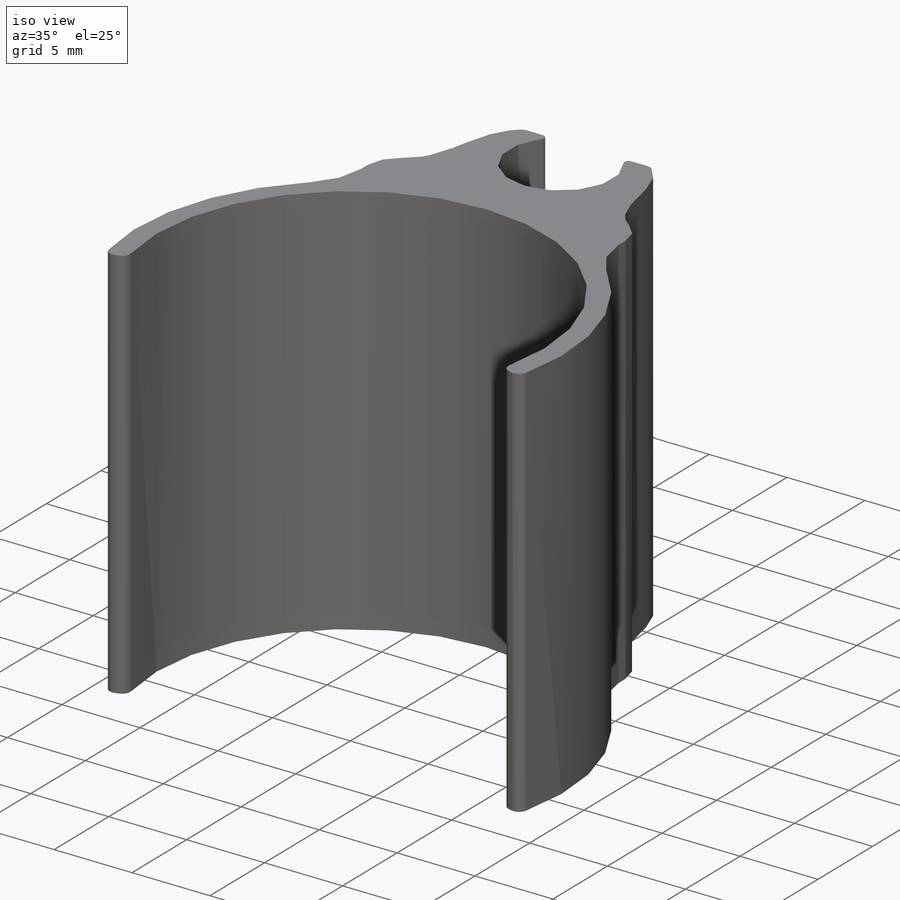
[diagram: iso view]
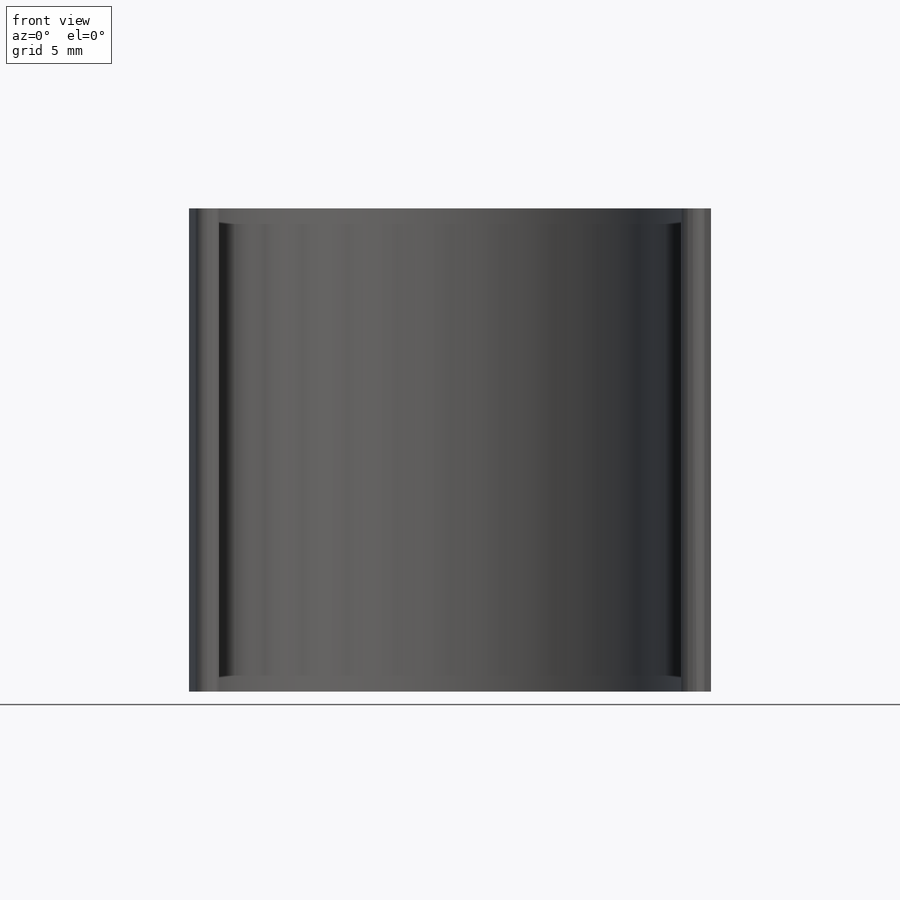
[diagram: front view]
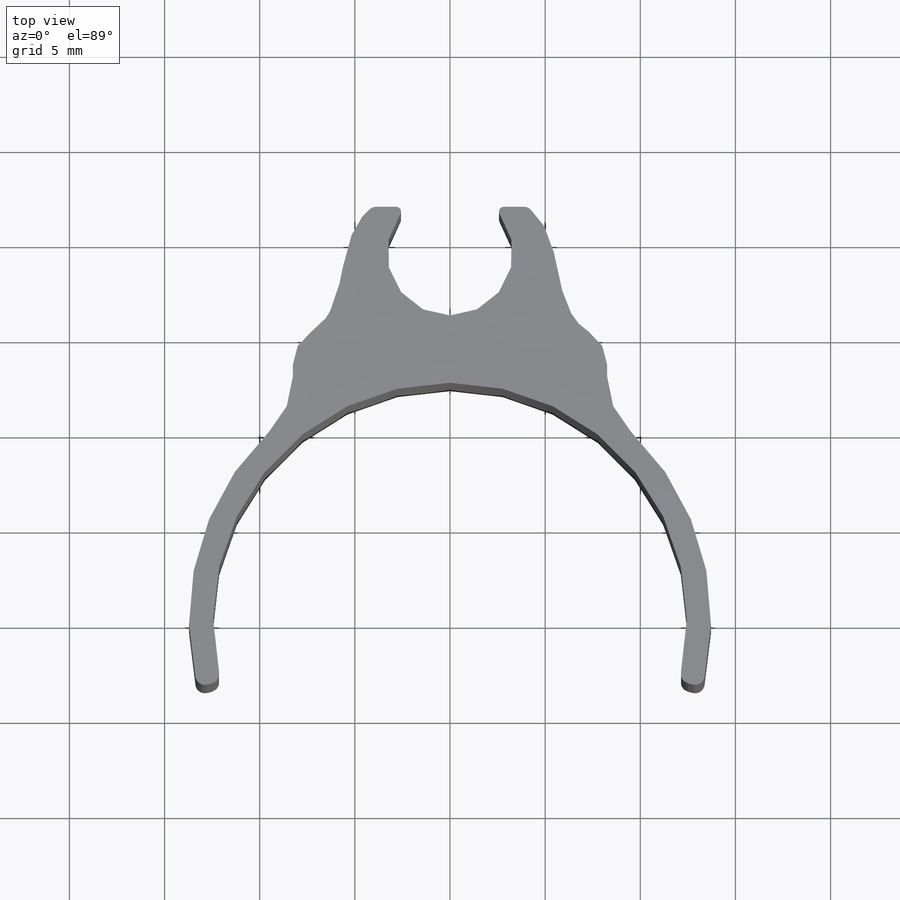
[diagram: top view]
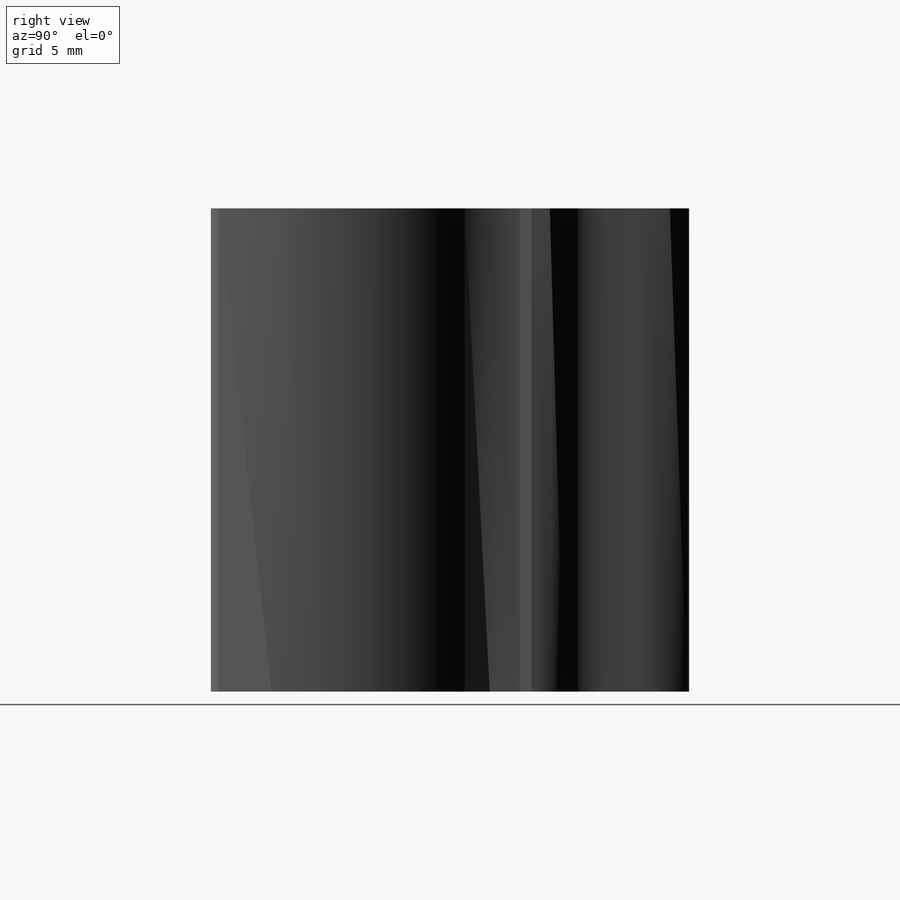
[diagram: right view]
SOLIDWORKS PART (.sldprt)
format: sldprt  version: not decoded by parser v0  size: 232,960 bytes
history: native  units: mm
features: fillet x5, sketch x2, material x1, extrude x1, cut_extrude x1 (+12 scaffold rows collapsed)
feature tree (22):
  scaffold x12  (default folders/planes/origin — collapsed)
  material  "Material <not specified>"
  sketch  "Sketch1"  dims[c1.D2=12.446mm c1.D3=40.0mm c1.D1=~36.279733mm c2.D1=210.0deg c2.D3=1.27mm c2.D4=1.0mm c2.D5=16.51mm c2.D6=6.985mm]
  extrude  "Boss-Extrude1"  Depth=25.4mm
  sketch  "Sketch2"  dims[D2=6.604mm D1=1.0mm D3=~4.572173mm D4=~4.191856mm D5=~1.978377mm D6=~1.546501mm D7=~1.245518mm D8=~3.190231mm]
  cut_extrude  "Cut-Extrude1"  [1 undecoded]
  fillet  "Fillet1"  Radius=0.508mm
  fillet  "Fillet2"  Radius=0.254mm
  fillet  "Fillet3"  Radius=2mm
  fillet  "Fillet4"  Radius=4mm
  fillet  "Fillet5"  Radius=0.5mm
decode coverage: 8 of 9 modeling features carry decoded parameters
note: ~ marks probable driven/reference dimensions
note: 1 parameter value undecoded
note: suppression state not decoded; provenance and decode notes live in map.json
